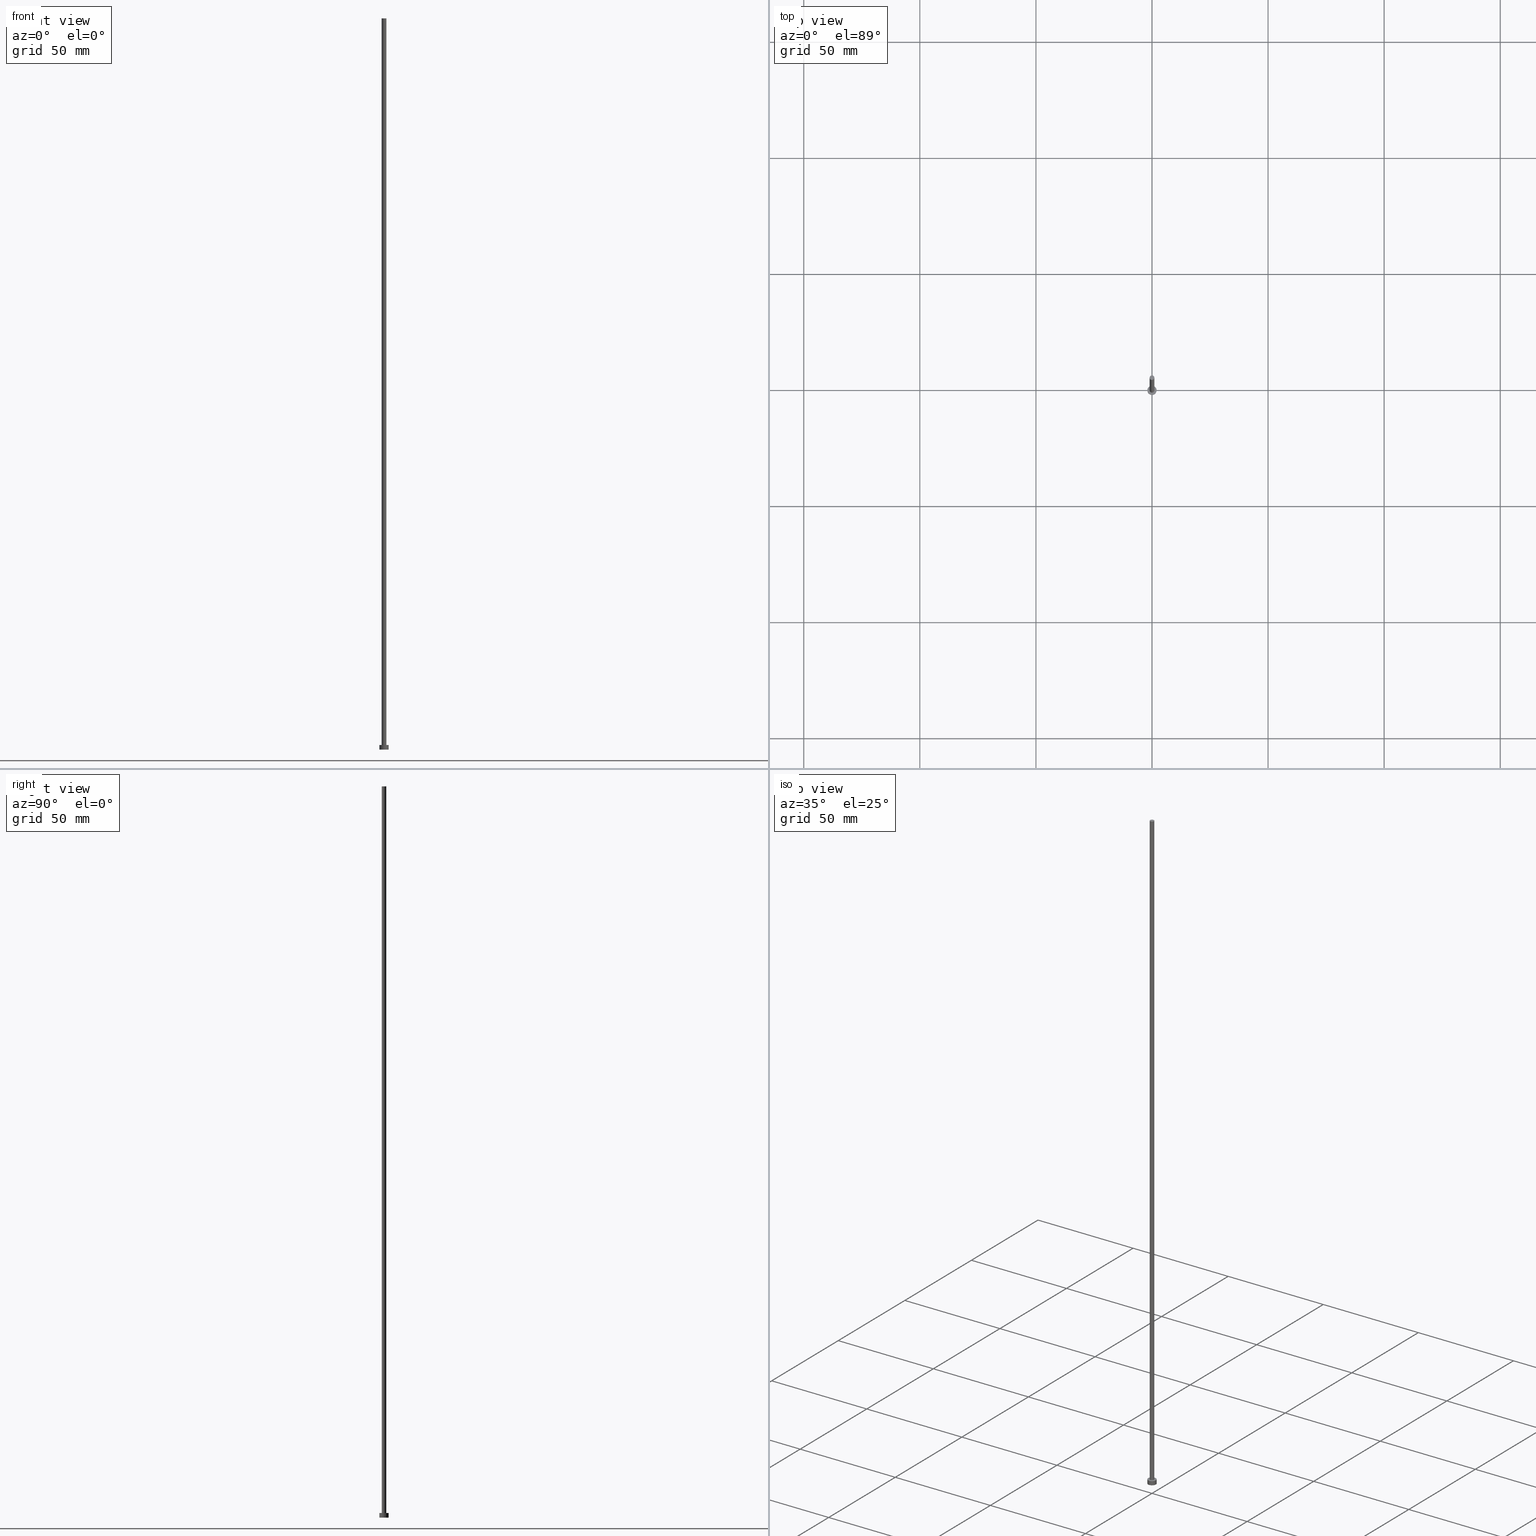
[diagram: canonical four-view strip — front | top / right | iso, engineering-drawing reading convention]
A machine part, canonical four-view strip (front | top / right | iso — engineering-drawing reading convention). The complete STEP part file that produces these views, byte-faithful:
ISO-10303-21;
HEADER;
FILE_DESCRIPTION (( 'STEP AP203' ),
    '1' );
FILE_NAME ('d252.STEP',
    '2026-02-06T12:32:10',
    ( '' ),
    ( '' ),
    'SwSTEP 2.0',
    'SolidWorks 2019',
    '' );
FILE_SCHEMA (( 'CONFIG_CONTROL_DESIGN' ));
ENDSEC;

DATA;
#1 = ADVANCED_BREP_SHAPE_REPRESENTATION ( 'd252', ( #183, #120 ), #225 ) ;
#2 = CARTESIAN_POINT ( 'NONE',  ( 0.000000000000000000, 0.000000000000000000, 315.0000000000000000 ) ) ;
#3 = EDGE_CURVE ( 'NONE', #143, #209, #64, .T. ) ;
#4 = DIRECTION ( 'NONE',  ( 0.000000000000000000, 0.000000000000000000, 1.000000000000000000 ) ) ;
#5 = AXIS2_PLACEMENT_3D ( 'NONE', #69, #203, #50 ) ;
#6 = EDGE_CURVE ( 'NONE', #143, #13, #136, .T. ) ;
#7 = DIRECTION ( 'NONE',  ( -1.000000000000000000, 0.000000000000000000, 0.000000000000000000 ) ) ;
#8 = CARTESIAN_POINT ( 'NONE',  ( -1.000000000000000000, 0.000000000000000000, 2.000000000000000000 ) ) ;
#9 = CARTESIAN_POINT ( 'NONE',  ( 0.000000000000000000, 0.000000000000000000, 2.000000000000000000 ) ) ;
#10 = DIRECTION ( 'NONE',  ( 1.000000000000000000, 0.000000000000000000, -0.000000000000000000 ) ) ;
#11 = CC_DESIGN_PERSON_AND_ORGANIZATION_ASSIGNMENT ( #43, #253, ( #235 ) ) ;
#12 = PERSON_AND_ORGANIZATION ( #118, #184 ) ;
#13 = VERTEX_POINT ( 'NONE', #112 ) ;
#14 = ORIENTED_EDGE ( 'NONE', *, *, #213, .F. ) ;
#15 = PERSON_AND_ORGANIZATION_ROLE ( 'creator' ) ;
#16 = AXIS2_PLACEMENT_3D ( 'NONE', #53, #190, #10 ) ;
#17 = APPROVAL_DATE_TIME ( #61, #238 ) ;
#18 = UNCERTAINTY_MEASURE_WITH_UNIT (LENGTH_MEASURE( 1.000000000000000082E-05 ), #171, 'distance_accuracy_value', 'NONE');
#19 = ADVANCED_FACE ( 'NONE', ( #189 ), #226, .T. ) ;
#20 = DIRECTION ( 'NONE',  ( -0.000000000000000000, -0.000000000000000000, -1.000000000000000000 ) ) ;
#21 = EDGE_CURVE ( 'NONE', #209, #143, #46, .T. ) ;
#22 = CC_DESIGN_APPROVAL ( #52, ( #146 ) ) ;
#23 = CARTESIAN_POINT ( 'NONE',  ( 0.000000000000000000, 0.000000000000000000, 315.0000000000000000 ) ) ;
#24 = CARTESIAN_POINT ( 'NONE',  ( -2.000000000000000000, 0.000000000000000000, 2.000000000000000000 ) ) ;
#25 = EDGE_LOOP ( 'NONE', ( #164, #247 ) ) ;
#26 = AXIS2_PLACEMENT_3D ( 'NONE', #244, #193, #227 ) ;
#27 = PLANE ( 'NONE',  #16 ) ;
#28 = ORIENTED_EDGE ( 'NONE', *, *, #128, .T. ) ;
#29 = DIRECTION ( 'NONE',  ( 0.000000000000000000, 0.000000000000000000, 1.000000000000000000 ) ) ;
#30 = CARTESIAN_POINT ( 'NONE',  ( 2.000000000000000000, 2.449293598294706414E-16, 2.000000000000000000 ) ) ;
#31 = DIRECTION ( 'NONE',  ( -0.000000000000000000, -0.000000000000000000, -1.000000000000000000 ) ) ;
#32 = ORIENTED_EDGE ( 'NONE', *, *, #175, .F. ) ;
#33 = VERTEX_POINT ( 'NONE', #173 ) ;
#34 = AXIS2_PLACEMENT_3D ( 'NONE', #2, #20, #127 ) ;
#35 = PERSON_AND_ORGANIZATION ( #118, #184 ) ;
#36 = CARTESIAN_POINT ( 'NONE',  ( 1.000000000000000000, 1.224646799147353207E-16, 2.000000000000000000 ) ) ;
#37 = PERSON_AND_ORGANIZATION ( #118, #184 ) ;
#38 = ORIENTED_EDGE ( 'NONE', *, *, #6, .F. ) ;
#39 = ORIENTED_EDGE ( 'NONE', *, *, #175, .T. ) ;
#40 = PERSON_AND_ORGANIZATION ( #118, #184 ) ;
#41 = ADVANCED_FACE ( 'NONE', ( #159 ), #229, .F. ) ;
#42 = CIRCLE ( 'NONE', #186, 2.000000000000000000 ) ;
#43 = PERSON_AND_ORGANIZATION ( #118, #184 ) ;
#44 = FACE_OUTER_BOUND ( 'NONE', #255, .T. ) ;
#45 = EDGE_LOOP ( 'NONE', ( #84, #208 ) ) ;
#46 = CIRCLE ( 'NONE', #201, 2.000000000000000000 ) ;
#47 = CARTESIAN_POINT ( 'NONE',  ( 0.000000000000000000, 0.000000000000000000, 2.000000000000000000 ) ) ;
#48 = DIRECTION ( 'NONE',  ( 0.000000000000000000, 0.000000000000000000, 1.000000000000000000 ) ) ;
#49 = DIRECTION ( 'NONE',  ( -0.000000000000000000, -0.000000000000000000, -1.000000000000000000 ) ) ;
#50 = DIRECTION ( 'NONE',  ( 1.000000000000000000, 0.000000000000000000, 0.000000000000000000 ) ) ;
#51 = CARTESIAN_POINT ( 'NONE',  ( 0.000000000000000000, 0.000000000000000000, 2.000000000000000000 ) ) ;
#52 = APPROVAL ( #139, 'NEUR�EN�' ) ;
#53 = CARTESIAN_POINT ( 'NONE',  ( 0.000000000000000000, 0.000000000000000000, 2.000000000000000000 ) ) ;
#54 = DIRECTION ( 'NONE',  ( 0.000000000000000000, 0.000000000000000000, 1.000000000000000000 ) ) ;
#55 = COORDINATED_UNIVERSAL_TIME_OFFSET ( 1, 0, .AHEAD. ) ;
#56 = ORIENTED_EDGE ( 'NONE', *, *, #213, .T. ) ;
#57 = ORIENTED_EDGE ( 'NONE', *, *, #230, .F. ) ;
#58 = MECHANICAL_CONTEXT ( 'NONE', #188, 'mechanical' ) ;
#59 = APPROVAL_STATUS ( 'not_yet_approved' ) ;
#60 = EDGE_LOOP ( 'NONE', ( #14, #32 ) ) ;
#61 = DATE_AND_TIME ( #160, #72 ) ;
#62 = CIRCLE ( 'NONE', #124, 1.000000000000000000 ) ;
#63 = CC_DESIGN_PERSON_AND_ORGANIZATION_ASSIGNMENT ( #35, #15, ( #146 ) ) ;
#64 = CIRCLE ( 'NONE', #125, 2.000000000000000000 ) ;
#65 = ORIENTED_EDGE ( 'NONE', *, *, #3, .T. ) ;
#66 = AXIS2_PLACEMENT_3D ( 'NONE', #158, #48, #242 ) ;
#67 = EDGE_CURVE ( 'NONE', #192, #243, #157, .T. ) ;
#68 = AXIS2_PLACEMENT_3D ( 'NONE', #47, #153, #7 ) ;
#69 = CARTESIAN_POINT ( 'NONE',  ( 0.000000000000000000, 0.000000000000000000, 2.000000000000000000 ) ) ;
#70 = CARTESIAN_POINT ( 'NONE',  ( -2.000000000000000000, 0.000000000000000000, 2.000000000000000000 ) ) ;
#71 = DIRECTION ( 'NONE',  ( 1.000000000000000000, 0.000000000000000000, 0.000000000000000000 ) ) ;
#72 = LOCAL_TIME ( 13, 32, 10.00000000000000000, #144 ) ;
#73 = DIRECTION ( 'NONE',  ( 1.000000000000000000, 0.000000000000000000, -0.000000000000000000 ) ) ;
#74 = DIRECTION ( 'NONE',  ( 0.000000000000000000, 0.000000000000000000, 1.000000000000000000 ) ) ;
#75 = ADVANCED_FACE ( 'NONE', ( #44 ), #87, .T. ) ;
#76 = APPROVAL_DATE_TIME ( #249, #221 ) ;
#77 = ORIENTED_EDGE ( 'NONE', *, *, #165, .T. ) ;
#78 = ORIENTED_EDGE ( 'NONE', *, *, #6, .T. ) ;
#79 = APPROVAL_ROLE ( '' ) ;
#80 = EDGE_LOOP ( 'NONE', ( #96, #78, #39, #232 ) ) ;
#81 = VECTOR ( 'NONE', #31, 1000.000000000000000 ) ;
#82 = ORIENTED_EDGE ( 'NONE', *, *, #211, .F. ) ;
#83 = CALENDAR_DATE ( 2026, 6, 2 ) ;
#84 = ORIENTED_EDGE ( 'NONE', *, *, #230, .T. ) ;
#85 = APPLICATION_CONTEXT ( 'configuration controlled 3d designs of mechanical parts and assemblies' ) ;
#86 = PERSON_AND_ORGANIZATION_ROLE ( 'design_owner' ) ;
#87 = CYLINDRICAL_SURFACE ( 'NONE', #34, 1.000000000000000000 ) ;
#88 = CC_DESIGN_DATE_AND_TIME_ASSIGNMENT ( #233, #231, ( #138 ) ) ;
#89 = LOCAL_TIME ( 13, 32, 10.00000000000000000, #174 ) ;
#90 = CARTESIAN_POINT ( 'NONE',  ( 1.000000000000000000, 1.224646799147353207E-16, 315.0000000000000000 ) ) ;
#91 = VECTOR ( 'NONE', #254, 1000.000000000000000 ) ;
#92 = CYLINDRICAL_SURFACE ( 'NONE', #252, 1.000000000000000000 ) ;
#93 = CC_DESIGN_PERSON_AND_ORGANIZATION_ASSIGNMENT ( #117, #86, ( #106 ) ) ;
#94 = ORIENTED_EDGE ( 'NONE', *, *, #21, .T. ) ;
#95 = DIRECTION ( 'NONE',  ( 0.000000000000000000, 0.000000000000000000, 1.000000000000000000 ) ) ;
#96 = ORIENTED_EDGE ( 'NONE', *, *, #3, .F. ) ;
#97 = VERTEX_POINT ( 'NONE', #36 ) ;
#98 = DATE_AND_TIME ( #178, #204 ) ;
#99 = ORIENTED_EDGE ( 'NONE', *, *, #67, .F. ) ;
#100 = CALENDAR_DATE ( 2026, 6, 2 ) ;
#101 = AXIS2_PLACEMENT_3D ( 'NONE', #131, #126, #137 ) ;
#102 = APPROVAL_DATE_TIME ( #98, #52 ) ;
#103 = ADVANCED_FACE ( 'NONE', ( #237 ), #147, .T. ) ;
#104 = LOCAL_TIME ( 13, 32, 10.00000000000000000, #55 ) ;
#105 = CC_DESIGN_PERSON_AND_ORGANIZATION_ASSIGNMENT ( #234, #195, ( #138 ) ) ;
#106 = PRODUCT ( 'd252', 'd252', '', ( #58 ) ) ;
#107 = CARTESIAN_POINT ( 'NONE',  ( 0.000000000000000000, 0.000000000000000000, 0.000000000000000000 ) ) ;
#108 = LINE ( 'NONE', #24, #161 ) ;
#109 = ORIENTED_EDGE ( 'NONE', *, *, #21, .F. ) ;
#110 = CIRCLE ( 'NONE', #26, 1.000000000000000000 ) ;
#111 = VECTOR ( 'NONE', #49, 1000.000000000000000 ) ;
#112 = CARTESIAN_POINT ( 'NONE',  ( 2.000000000000000000, 2.449293598294706414E-16, 0.000000000000000000 ) ) ;
#113 = DIRECTION ( 'NONE',  ( 1.000000000000000000, 0.000000000000000000, -0.000000000000000000 ) ) ;
#114 = EDGE_LOOP ( 'NONE', ( #38, #109, #121, #56 ) ) ;
#115 =( NAMED_UNIT ( * ) SI_UNIT ( $, .STERADIAN. ) SOLID_ANGLE_UNIT ( ) );
#116 = DIRECTION ( 'NONE',  ( -1.000000000000000000, 0.000000000000000000, 0.000000000000000000 ) ) ;
#117 = PERSON_AND_ORGANIZATION ( #118, #184 ) ;
#118 = PERSON ( 'NEUR�EN�', 'NEUR�EN�', 'NEUR�EN�', ('NEUR�EN�'), ('NEUR�EN�'), ('NEUR�EN�') ) ;
#119 = COORDINATED_UNIVERSAL_TIME_OFFSET ( 1, 0, .AHEAD. ) ;
#120 = AXIS2_PLACEMENT_3D ( 'NONE', #145, #180, #215 ) ;
#121 = ORIENTED_EDGE ( 'NONE', *, *, #168, .T. ) ;
#122 = APPROVAL_ROLE ( '' ) ;
#123 = LOCAL_TIME ( 13, 32, 10.00000000000000000, #119 ) ;
#124 = AXIS2_PLACEMENT_3D ( 'NONE', #223, #74, #167 ) ;
#125 = AXIS2_PLACEMENT_3D ( 'NONE', #166, #54, #151 ) ;
#126 = DIRECTION ( 'NONE',  ( 0.000000000000000000, 0.000000000000000000, 1.000000000000000000 ) ) ;
#127 = DIRECTION ( 'NONE',  ( -1.000000000000000000, 0.000000000000000000, 0.000000000000000000 ) ) ;
#128 = EDGE_CURVE ( 'NONE', #97, #243, #62, .T. ) ;
#129 = CARTESIAN_POINT ( 'NONE',  ( 2.000000000000000000, 2.449293598294706414E-16, 2.000000000000000000 ) ) ;
#130 = ADVANCED_FACE ( 'NONE', ( #224 ), #241, .T. ) ;
#131 = CARTESIAN_POINT ( 'NONE',  ( 0.000000000000000000, 0.000000000000000000, 315.0000000000000000 ) ) ;
#132 = AXIS2_PLACEMENT_3D ( 'NONE', #51, #133, #135 ) ;
#133 = DIRECTION ( 'NONE',  ( -0.000000000000000000, -0.000000000000000000, -1.000000000000000000 ) ) ;
#134 =( NAMED_UNIT ( * ) PLANE_ANGLE_UNIT ( ) SI_UNIT ( $, .RADIAN. ) );
#135 = DIRECTION ( 'NONE',  ( -1.000000000000000000, 0.000000000000000000, 0.000000000000000000 ) ) ;
#136 = LINE ( 'NONE', #30, #111 ) ;
#137 = DIRECTION ( 'NONE',  ( 1.000000000000000000, 0.000000000000000000, 0.000000000000000000 ) ) ;
#138 = PRODUCT_DEFINITION ( 'NEZN�M�', '', #146, #200 ) ;
#139 = APPROVAL_STATUS ( 'not_yet_approved' ) ;
#140 = CIRCLE ( 'NONE', #5, 1.000000000000000000 ) ;
#141 = EDGE_LOOP ( 'NONE', ( #228, #57, #172, #77 ) ) ;
#142 = COORDINATED_UNIVERSAL_TIME_OFFSET ( 1, 0, .AHEAD. ) ;
#143 = VERTEX_POINT ( 'NONE', #129 ) ;
#144 = COORDINATED_UNIVERSAL_TIME_OFFSET ( 1, 0, .AHEAD. ) ;
#145 = CARTESIAN_POINT ( 'NONE',  ( 0.000000000000000000, 0.000000000000000000, 0.000000000000000000 ) ) ;
#146 = PRODUCT_DEFINITION_FORMATION_WITH_SPECIFIED_SOURCE ( 'LIBOVOLN�', '', #106, .NOT_KNOWN. ) ;
#147 = CYLINDRICAL_SURFACE ( 'NONE', #68, 2.000000000000000000 ) ;
#148 = PRODUCT_DEFINITION_SHAPE ( 'NONE', 'NONE',  #138 ) ;
#149 = APPLICATION_PROTOCOL_DEFINITION ( 'international standard', 'config_control_design', 1994, #188 ) ;
#150 = CARTESIAN_POINT ( 'NONE',  ( 0.000000000000000000, 0.000000000000000000, 315.0000000000000000 ) ) ;
#151 = DIRECTION ( 'NONE',  ( 1.000000000000000000, 0.000000000000000000, 0.000000000000000000 ) ) ;
#152 = APPROVAL_PERSON_ORGANIZATION ( #212, #221, #122 ) ;
#153 = DIRECTION ( 'NONE',  ( -0.000000000000000000, -0.000000000000000000, -1.000000000000000000 ) ) ;
#154 = DIRECTION ( 'NONE',  ( -0.000000000000000000, -0.000000000000000000, -1.000000000000000000 ) ) ;
#155 = AXIS2_PLACEMENT_3D ( 'NONE', #176, #246, #73 ) ;
#156 = CC_DESIGN_PERSON_AND_ORGANIZATION_ASSIGNMENT ( #37, #196, ( #146 ) ) ;
#157 = LINE ( 'NONE', #181, #91 ) ;
#158 = CARTESIAN_POINT ( 'NONE',  ( 0.000000000000000000, 0.000000000000000000, 0.000000000000000000 ) ) ;
#159 = FACE_OUTER_BOUND ( 'NONE', #60, .T. ) ;
#160 = CALENDAR_DATE ( 2026, 6, 2 ) ;
#161 = VECTOR ( 'NONE', #222, 1000.000000000000000 ) ;
#162 = DATE_AND_TIME ( #83, #89 ) ;
#163 = SECURITY_CLASSIFICATION_LEVEL ( 'unclassified' ) ;
#164 = ORIENTED_EDGE ( 'NONE', *, *, #165, .F. ) ;
#165 = EDGE_CURVE ( 'NONE', #243, #97, #140, .T. ) ;
#166 = CARTESIAN_POINT ( 'NONE',  ( 0.000000000000000000, 0.000000000000000000, 2.000000000000000000 ) ) ;
#167 = DIRECTION ( 'NONE',  ( 1.000000000000000000, 0.000000000000000000, 0.000000000000000000 ) ) ;
#168 = EDGE_CURVE ( 'NONE', #209, #214, #108, .T. ) ;
#169 = CARTESIAN_POINT ( 'NONE',  ( -2.000000000000000000, 0.000000000000000000, 0.000000000000000000 ) ) ;
#170 = APPROVAL_PERSON_ORGANIZATION ( #12, #52, #236 ) ;
#171 =( LENGTH_UNIT ( ) NAMED_UNIT ( * ) SI_UNIT ( .MILLI., .METRE. ) );
#172 = ORIENTED_EDGE ( 'NONE', *, *, #67, .T. ) ;
#173 = CARTESIAN_POINT ( 'NONE',  ( 1.000000000000000000, 1.224646799147353207E-16, 315.0000000000000000 ) ) ;
#174 = COORDINATED_UNIVERSAL_TIME_OFFSET ( 1, 0, .AHEAD. ) ;
#175 = EDGE_CURVE ( 'NONE', #13, #214, #42, .T. ) ;
#176 = CARTESIAN_POINT ( 'NONE',  ( 0.000000000000000000, 0.000000000000000000, 0.000000000000000000 ) ) ;
#177 = DATE_TIME_ROLE ( 'classification_date' ) ;
#178 = CALENDAR_DATE ( 2026, 6, 2 ) ;
#179 = CIRCLE ( 'NONE', #66, 2.000000000000000000 ) ;
#180 = DIRECTION ( 'NONE',  ( 0.000000000000000000, 0.000000000000000000, 1.000000000000000000 ) ) ;
#181 = CARTESIAN_POINT ( 'NONE',  ( -1.000000000000000000, 0.000000000000000000, 315.0000000000000000 ) ) ;
#182 = PRODUCT_RELATED_PRODUCT_CATEGORY ( 'detail', '', ( #106 ) ) ;
#183 = MANIFOLD_SOLID_BREP ( 'P�idat vysunut�m3', #202 ) ;
#184 = ORGANIZATION ( 'NEUR�EN�', 'NEUR�EN�', '' ) ;
#185 = CARTESIAN_POINT ( 'NONE',  ( -1.000000000000000000, 0.000000000000000000, 315.0000000000000000 ) ) ;
#186 = AXIS2_PLACEMENT_3D ( 'NONE', #107, #4, #205 ) ;
#187 = LINE ( 'NONE', #90, #81 ) ;
#188 = APPLICATION_CONTEXT ( 'configuration controlled 3d designs of mechanical parts and assemblies' ) ;
#189 = FACE_OUTER_BOUND ( 'NONE', #114, .T. ) ;
#190 = DIRECTION ( 'NONE',  ( 0.000000000000000000, 0.000000000000000000, 1.000000000000000000 ) ) ;
#191 = FACE_BOUND ( 'NONE', #25, .T. ) ;
#192 = VERTEX_POINT ( 'NONE', #185 ) ;
#193 = DIRECTION ( 'NONE',  ( 0.000000000000000000, 0.000000000000000000, 1.000000000000000000 ) ) ;
#194 = EDGE_CURVE ( 'NONE', #33, #97, #187, .T. ) ;
#195 = PERSON_AND_ORGANIZATION_ROLE ( 'creator' ) ;
#196 = PERSON_AND_ORGANIZATION_ROLE ( 'design_supplier' ) ;
#197 = CALENDAR_DATE ( 2026, 6, 2 ) ;
#198 = ADVANCED_FACE ( 'NONE', ( #210 ), #92, .T. ) ;
#199 = CC_DESIGN_DATE_AND_TIME_ASSIGNMENT ( #162, #177, ( #235 ) ) ;
#200 = DESIGN_CONTEXT ( 'detailed design', #85, 'design' ) ;
#201 = AXIS2_PLACEMENT_3D ( 'NONE', #9, #29, #71 ) ;
#202 = CLOSED_SHELL ( 'NONE', ( #75, #103, #19, #239, #41, #198, #130 ) ) ;
#203 = DIRECTION ( 'NONE',  ( 0.000000000000000000, 0.000000000000000000, 1.000000000000000000 ) ) ;
#204 = LOCAL_TIME ( 13, 32, 10.00000000000000000, #142 ) ;
#205 = DIRECTION ( 'NONE',  ( 1.000000000000000000, 0.000000000000000000, 0.000000000000000000 ) ) ;
#206 = CIRCLE ( 'NONE', #101, 1.000000000000000000 ) ;
#207 = FACE_OUTER_BOUND ( 'NONE', #216, .T. ) ;
#208 = ORIENTED_EDGE ( 'NONE', *, *, #211, .T. ) ;
#209 = VERTEX_POINT ( 'NONE', #70 ) ;
#210 = FACE_OUTER_BOUND ( 'NONE', #141, .T. ) ;
#211 = EDGE_CURVE ( 'NONE', #33, #192, #110, .T. ) ;
#212 = PERSON_AND_ORGANIZATION ( #118, #184 ) ;
#213 = EDGE_CURVE ( 'NONE', #214, #13, #179, .T. ) ;
#214 = VERTEX_POINT ( 'NONE', #169 ) ;
#215 = DIRECTION ( 'NONE',  ( 1.000000000000000000, 0.000000000000000000, 0.000000000000000000 ) ) ;
#216 = EDGE_LOOP ( 'NONE', ( #94, #65 ) ) ;
#217 = APPROVAL_STATUS ( 'not_yet_approved' ) ;
#218 = APPLICATION_PROTOCOL_DEFINITION ( 'international standard', 'config_control_design', 1994, #85 ) ;
#219 = CC_DESIGN_APPROVAL ( #238, ( #138 ) ) ;
#220 = CC_DESIGN_APPROVAL ( #221, ( #235 ) ) ;
#221 = APPROVAL ( #217, 'NEUR�EN�' ) ;
#222 = DIRECTION ( 'NONE',  ( -0.000000000000000000, -0.000000000000000000, -1.000000000000000000 ) ) ;
#223 = CARTESIAN_POINT ( 'NONE',  ( 0.000000000000000000, 0.000000000000000000, 2.000000000000000000 ) ) ;
#224 = FACE_OUTER_BOUND ( 'NONE', #45, .T. ) ;
#225 =( GEOMETRIC_REPRESENTATION_CONTEXT ( 3 ) GLOBAL_UNCERTAINTY_ASSIGNED_CONTEXT ( ( #18 ) ) GLOBAL_UNIT_ASSIGNED_CONTEXT ( ( #171, #134, #115 ) ) REPRESENTATION_CONTEXT ( 'NONE', 'WORKASPACE' ) );
#226 = CYLINDRICAL_SURFACE ( 'NONE', #132, 2.000000000000000000 ) ;
#227 = DIRECTION ( 'NONE',  ( 1.000000000000000000, 0.000000000000000000, 0.000000000000000000 ) ) ;
#228 = ORIENTED_EDGE ( 'NONE', *, *, #194, .F. ) ;
#229 = PLANE ( 'NONE',  #155 ) ;
#230 = EDGE_CURVE ( 'NONE', #192, #33, #206, .T. ) ;
#231 = DATE_TIME_ROLE ( 'creation_date' ) ;
#232 = ORIENTED_EDGE ( 'NONE', *, *, #168, .F. ) ;
#233 = DATE_AND_TIME ( #100, #104 ) ;
#234 = PERSON_AND_ORGANIZATION ( #118, #184 ) ;
#235 = SECURITY_CLASSIFICATION ( '', '', #163 ) ;
#236 = APPROVAL_ROLE ( '' ) ;
#237 = FACE_OUTER_BOUND ( 'NONE', #80, .T. ) ;
#238 = APPROVAL ( #59, 'NEUR�EN�' ) ;
#239 = ADVANCED_FACE ( 'NONE', ( #191, #207 ), #27, .T. ) ;
#240 = AXIS2_PLACEMENT_3D ( 'NONE', #23, #95, #113 ) ;
#241 = PLANE ( 'NONE',  #240 ) ;
#242 = DIRECTION ( 'NONE',  ( 1.000000000000000000, 0.000000000000000000, 0.000000000000000000 ) ) ;
#243 = VERTEX_POINT ( 'NONE', #8 ) ;
#244 = CARTESIAN_POINT ( 'NONE',  ( 0.000000000000000000, 0.000000000000000000, 315.0000000000000000 ) ) ;
#245 = APPROVAL_PERSON_ORGANIZATION ( #40, #238, #79 ) ;
#246 = DIRECTION ( 'NONE',  ( 0.000000000000000000, 0.000000000000000000, 1.000000000000000000 ) ) ;
#247 = ORIENTED_EDGE ( 'NONE', *, *, #128, .F. ) ;
#248 = SHAPE_DEFINITION_REPRESENTATION ( #148, #1 ) ;
#249 = DATE_AND_TIME ( #197, #123 ) ;
#250 = ORIENTED_EDGE ( 'NONE', *, *, #194, .T. ) ;
#251 = CC_DESIGN_SECURITY_CLASSIFICATION ( #235, ( #146 ) ) ;
#252 = AXIS2_PLACEMENT_3D ( 'NONE', #150, #154, #116 ) ;
#253 = PERSON_AND_ORGANIZATION_ROLE ( 'classification_officer' ) ;
#254 = DIRECTION ( 'NONE',  ( -0.000000000000000000, -0.000000000000000000, -1.000000000000000000 ) ) ;
#255 = EDGE_LOOP ( 'NONE', ( #82, #250, #28, #99 ) ) ;
ENDSEC;
END-ISO-10303-21;
